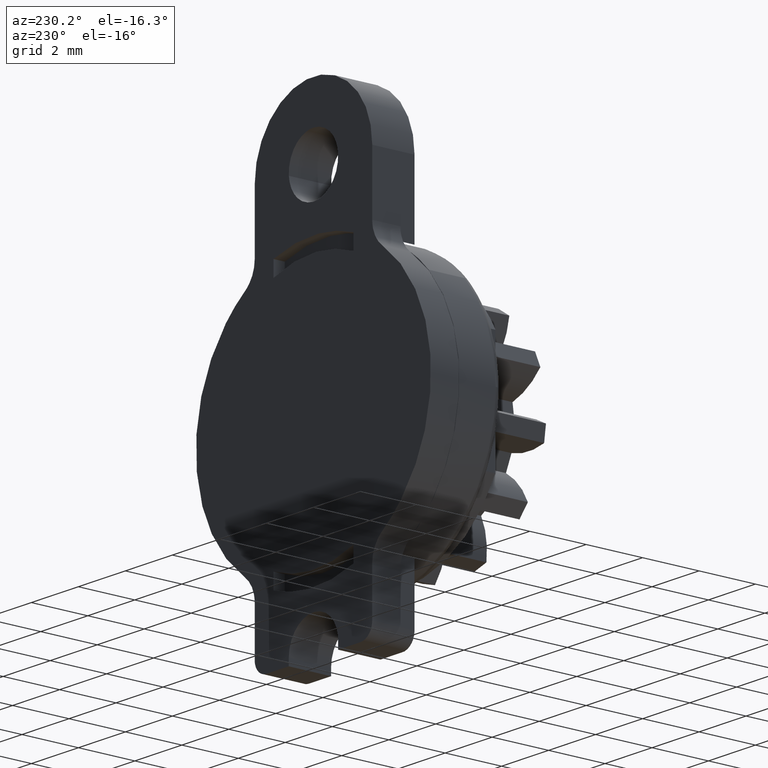
[diagram: clean part render]
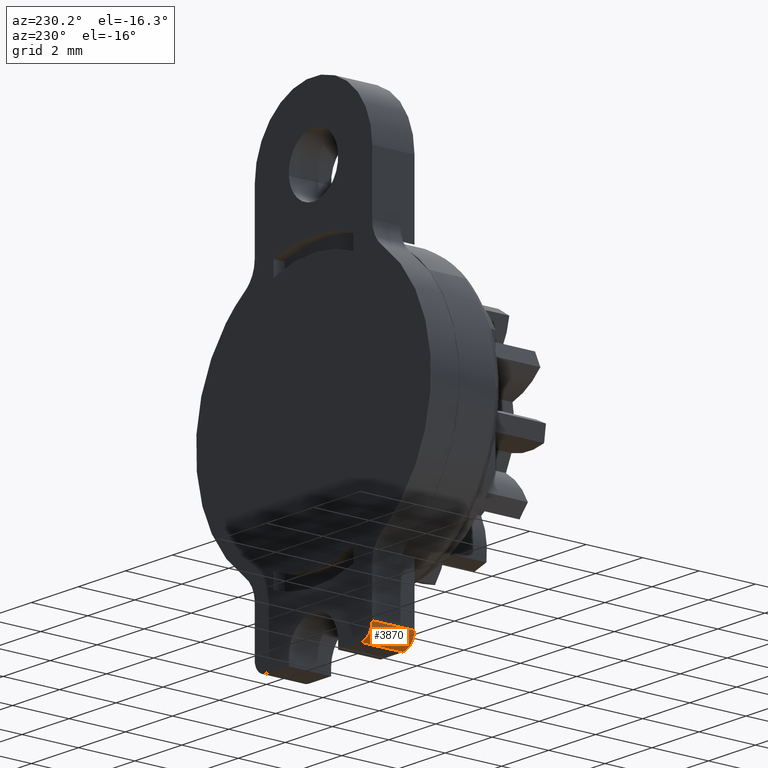
[diagram: same view with one face highlighted and labeled with its STEP entity id]
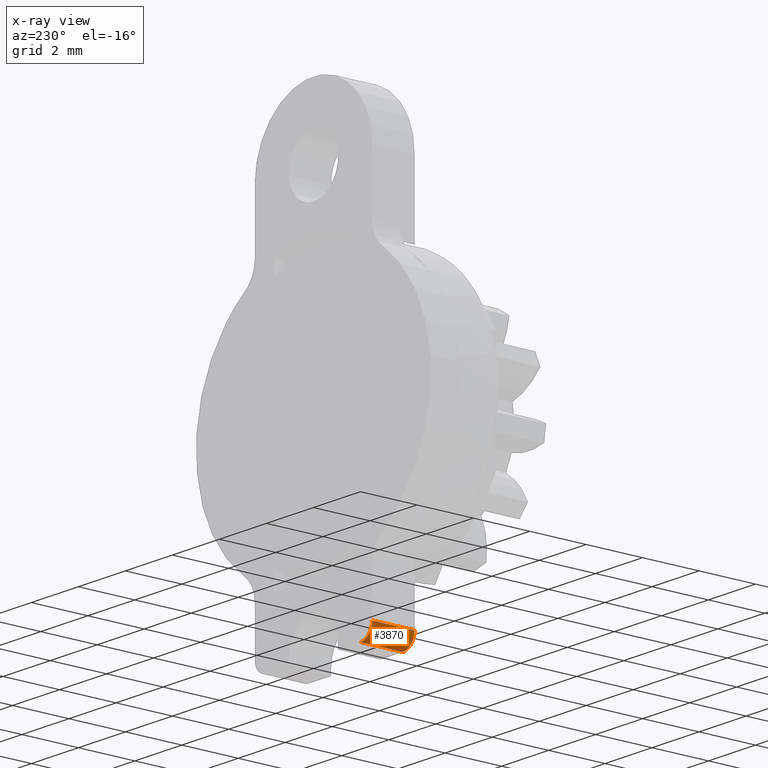
[diagram: x-ray of the same camera — body ghosted, the highlighted face saturated]
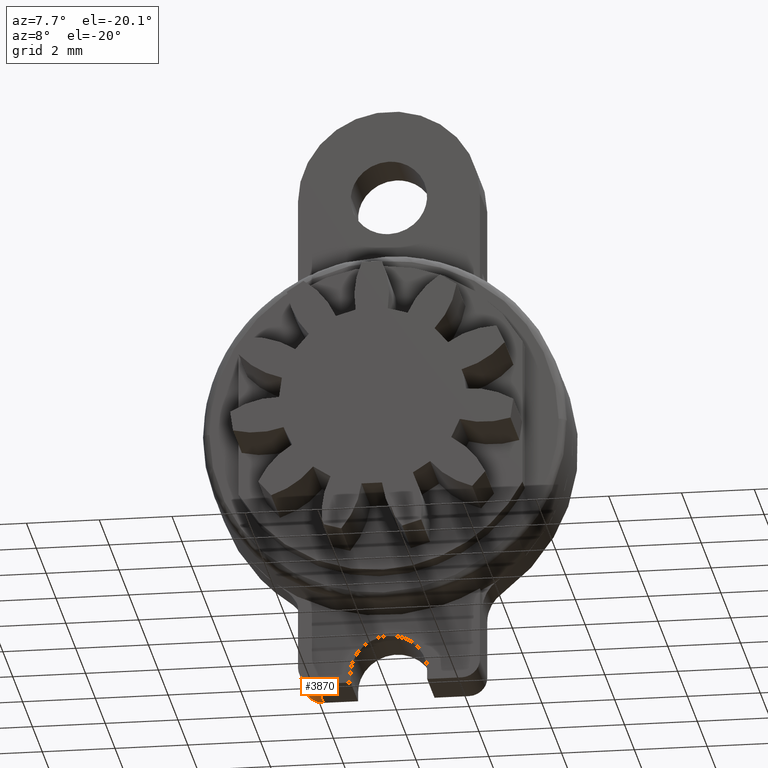
[diagram: same view with one face highlighted and labeled with its STEP entity id]
A machine part, auxiliary view. The second image highlights one B-rep face of the part: STEP entity #3870.
The next image is the same camera in x-ray: the body ghosted, the highlighted face saturated — about 0% of this face is hidden behind the body in this view.
A second angle (auxiliary view) of the same face is appended — the face is thin or edge-on in the first view.
In plain terms, the highlighted face is a freeform B-spline surface patch.
Its self-contained STEP definition (entity closure, byte-faithful):
#3795=CARTESIAN_POINT('',(-2.0,0.0,-7.0));
#3796=VERTEX_POINT('',#3795);
#3803=CARTESIAN_POINT('',(-2.0,-1.499999999999946,-7.0));
#3804=VERTEX_POINT('',#3803);
#3810=CARTESIAN_POINT('',(-2.0,-1.499999999999946,-7.0));
#3811=CARTESIAN_POINT('',(-2.0,0.0,-7.0));
#3812=QUASI_UNIFORM_CURVE('',1,(#3810,#3811),.UNSPECIFIED.,.F.,.U.);
#3813=EDGE_CURVE('',#3804,#3796,#3812,.T.);
#3818=CARTESIAN_POINT('',(-2.499828662487778,-1.537499999999945,-6.486911525846063));
#3819=CARTESIAN_POINT('',(-2.499828662487778,0.038437499999999,-6.486911525846063));
#3820=CARTESIAN_POINT('',(-2.514112225597994,-1.537499999999946,-7.032378794297059));
#3821=CARTESIAN_POINT('',(-2.514112225597994,0.038437499999999,-7.032378794297059));
#3822=CARTESIAN_POINT('',(-1.969475730232571,-1.537499999999945,-6.999067399210933));
#3823=CARTESIAN_POINT('',(-1.969475730232571,0.038437499999999,-6.999067399210933));
#3831=(BOUNDED_SURFACE()B_SPLINE_SURFACE(1,2,((#3818,#3820,#3822),(#3819,#3821,#3823)),.UNSPECIFIED.,.F.,.F.,.U.)GEOMETRIC_REPRESENTATION_ITEM()QUASI_UNIFORM_SURFACE()RATIONAL_B_SPLINE_SURFACE(((1.0,0.675590207615660,1.0),(1.0,0.675590207615660,1.0)))REPRESENTATION_ITEM('')SURFACE());
#3832=CARTESIAN_POINT('',(-2.500000000000000,0.0,-6.500000000000000));
#3833=VERTEX_POINT('',#3832);
#3834=CARTESIAN_POINT('',(-2.500000000000000,0.0,-6.500000000000000));
#3835=CARTESIAN_POINT('',(-2.500000000000000,0.0,-6.999999999999999));
#3836=CARTESIAN_POINT('',(-2.0,0.0,-6.999999999999999));
#3844=(BOUNDED_CURVE()B_SPLINE_CURVE(2,(#3834,#3835,#3836),.UNSPECIFIED.,.F.,.U.)CURVE()GEOMETRIC_REPRESENTATION_ITEM()QUASI_UNIFORM_CURVE()RATIONAL_B_SPLINE_CURVE((1.0,0.707106781186548,1.0))REPRESENTATION_ITEM(''));
#3845=EDGE_CURVE('',#3833,#3796,#3844,.T.);
#3846=ORIENTED_EDGE('',*,*,#3845,.T.);
#3847=ORIENTED_EDGE('',*,*,#3813,.F.);
#3848=CARTESIAN_POINT('',(-2.500000000000000,-1.499999999999946,-6.500000000000000));
#3849=VERTEX_POINT('',#3848);
#3850=CARTESIAN_POINT('',(-2.500000000000000,-1.499999999999946,-6.500000000000000));
#3851=CARTESIAN_POINT('',(-2.500000000000000,-1.499999999999946,-6.999999999999999));
#3852=CARTESIAN_POINT('',(-2.0,-1.499999999999946,-6.999999999999999));
#3860=(BOUNDED_CURVE()B_SPLINE_CURVE(2,(#3850,#3851,#3852),.UNSPECIFIED.,.F.,.U.)CURVE()GEOMETRIC_REPRESENTATION_ITEM()QUASI_UNIFORM_CURVE()RATIONAL_B_SPLINE_CURVE((1.0,0.707106781186548,1.0))REPRESENTATION_ITEM(''));
#3861=EDGE_CURVE('',#3849,#3804,#3860,.T.);
#3862=ORIENTED_EDGE('',*,*,#3861,.F.);
#3863=CARTESIAN_POINT('',(-2.500000000000000,-1.499999999999946,-6.500000000000000));
#3864=CARTESIAN_POINT('',(-2.500000000000000,0.0,-6.500000000000000));
#3865=QUASI_UNIFORM_CURVE('',1,(#3863,#3864),.UNSPECIFIED.,.F.,.U.);
#3866=EDGE_CURVE('',#3849,#3833,#3865,.T.);
#3867=ORIENTED_EDGE('',*,*,#3866,.T.);
#3868=EDGE_LOOP('',(#3846,#3847,#3862,#3867));
#3869=FACE_OUTER_BOUND('',#3868,.T.);
#3870=ADVANCED_FACE('',(#3869),#3831,.T.);